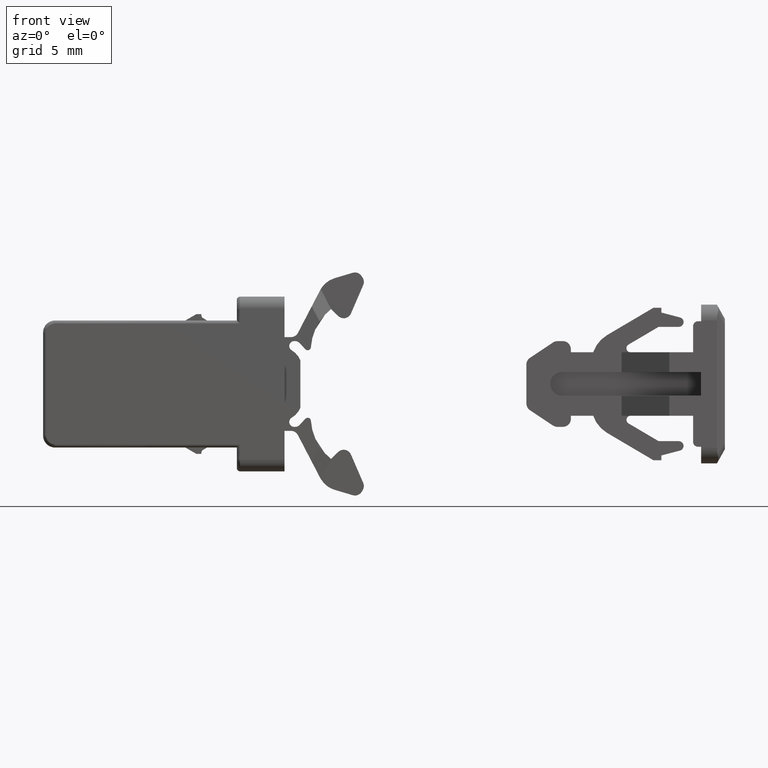
[diagram: clean part render]
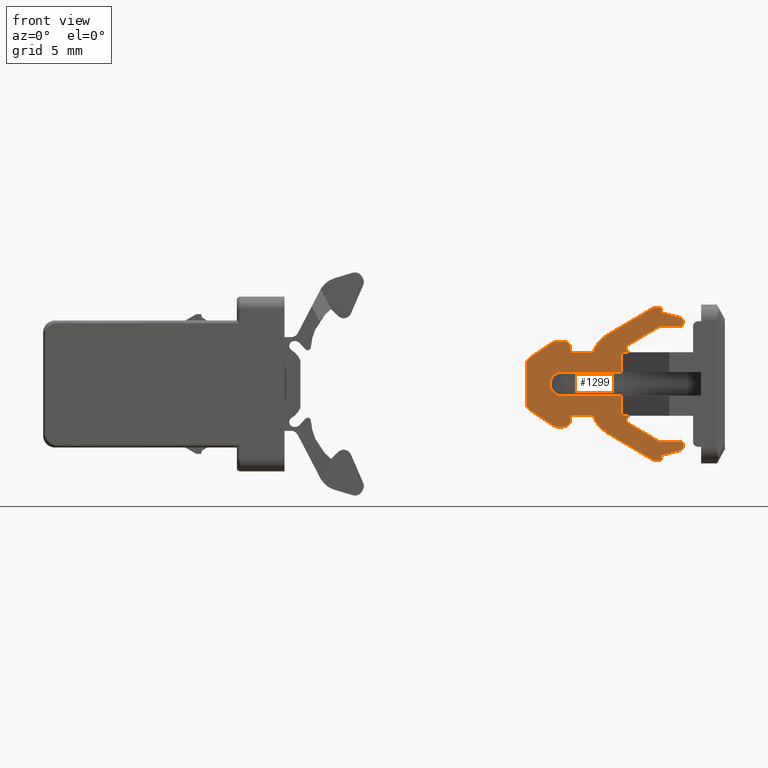
[diagram: same view with one face highlighted and labeled with its STEP entity id]
A machine part, front view. The second image highlights one B-rep face of the part: STEP entity #1299.
In plain terms, the highlighted face is a freeform B-spline surface patch.
Its self-contained STEP definition (entity closure, byte-faithful):
#812=CARTESIAN_POINT('',(21.233476587557750,-1.500000000000000,0.750000000000028));
#813=VERTEX_POINT('',#812);
#819=CARTESIAN_POINT('',(17.483476587557899,-1.499999999999946,0.750000000000000));
#820=VERTEX_POINT('',#819);
#821=CARTESIAN_POINT('',(21.233476587557750,-1.500000000000000,0.750000000000028));
#822=CARTESIAN_POINT('',(17.483476587557899,-1.499999999999946,0.750000000000000));
#823=QUASI_UNIFORM_CURVE('',1,(#821,#822),.UNSPECIFIED.,.F.,.U.);
#824=EDGE_CURVE('',#813,#820,#823,.T.);
#852=CARTESIAN_POINT('',(21.233476587557750,-1.500000000000000,-0.749999999999901));
#853=VERTEX_POINT('',#852);
#874=CARTESIAN_POINT('',(17.483476587557899,-1.499999999999946,-0.749999999999901));
#875=VERTEX_POINT('',#874);
#881=CARTESIAN_POINT('',(17.483476587557899,-1.499999999999946,-0.749999999999901));
#882=CARTESIAN_POINT('',(21.233476587557750,-1.500000000000000,-0.749999999999901));
#883=QUASI_UNIFORM_CURVE('',1,(#881,#882),.UNSPECIFIED.,.F.,.U.);
#884=EDGE_CURVE('',#875,#853,#883,.T.);
#910=CARTESIAN_POINT('',(17.483476587557899,-1.499999999999946,-0.749999999999901));
#911=CARTESIAN_POINT('',(16.733476587557899,-1.499999999999946,-0.750000000000000));
#912=CARTESIAN_POINT('',(16.733476587557899,-1.499999999999946,0.0));
#913=CARTESIAN_POINT('',(16.733476587557899,-1.499999999999946,0.750000000000000));
#914=CARTESIAN_POINT('',(17.483476587557899,-1.499999999999946,0.750000000000000));
#922=(BOUNDED_CURVE()B_SPLINE_CURVE(2,(#910,#911,#912,#913,#914),.UNSPECIFIED.,.F.,.U.)B_SPLINE_CURVE_WITH_KNOTS((3,2,3),(0.0,0.500000000000000,1.0),.UNSPECIFIED.)CURVE()GEOMETRIC_REPRESENTATION_ITEM()RATIONAL_B_SPLINE_CURVE((1.0,0.707106781186548,1.0,0.707106781186548,1.0))REPRESENTATION_ITEM(''));
#923=EDGE_CURVE('',#875,#820,#922,.T.);
#928=CARTESIAN_POINT('',(14.738979633618481,-1.500000000000000,-5.279520251747138));
#929=CARTESIAN_POINT('',(25.627813108885320,-1.500000000000000,-5.279520251747138));
#930=CARTESIAN_POINT('',(14.738979633618481,-1.500000000000000,5.279520251747236));
#931=CARTESIAN_POINT('',(25.627813108885320,-1.500000000000000,5.279520251747236));
#932=B_SPLINE_SURFACE_WITH_KNOTS('',1,1,((#928,#930),(#929,#931)),.UNSPECIFIED.,.F.,.F.,.U.,(2,2),(2,2),(0.0,10.888833475266850),(0.0,10.559040503494369),.UNSPECIFIED.);
#933=ORIENTED_EDGE('',*,*,#884,.F.);
#934=ORIENTED_EDGE('',*,*,#923,.T.);
#935=ORIENTED_EDGE('',*,*,#824,.F.);
#936=CARTESIAN_POINT('',(21.233476587557750,-1.500000000000000,1.999999999999890));
#937=VERTEX_POINT('',#936);
#938=CARTESIAN_POINT('',(21.233476587557750,-1.500000000000000,0.750000000000028));
#939=CARTESIAN_POINT('',(21.233476587557750,-1.500000000000000,1.999999999999890));
#940=QUASI_UNIFORM_CURVE('',1,(#938,#939),.UNSPECIFIED.,.F.,.U.);
#941=EDGE_CURVE('',#813,#937,#940,.T.);
#942=ORIENTED_EDGE('',*,*,#941,.T.);
#943=CARTESIAN_POINT('',(21.790795587557650,-1.499999999999946,2.0));
#944=VERTEX_POINT('',#943);
#945=CARTESIAN_POINT('',(21.790795587557650,-1.499999999999946,2.0));
#946=CARTESIAN_POINT('',(21.233476587557750,-1.500000000000000,1.999999999999890));
#947=QUASI_UNIFORM_CURVE('',1,(#945,#946),.UNSPECIFIED.,.F.,.U.);
#948=EDGE_CURVE('',#944,#937,#947,.T.);
#949=ORIENTED_EDGE('',*,*,#948,.F.);
#950=CARTESIAN_POINT('',(21.660081389823500,-1.499999999999946,2.478964812664635));
#951=VERTEX_POINT('',#950);
#952=CARTESIAN_POINT('',(21.660081389823500,-1.499999999999946,2.478964812664635));
#953=CARTESIAN_POINT('',(21.490819050458253,-1.499999999999947,2.379143432640551));
#954=CARTESIAN_POINT('',(21.542555032218662,-1.499999999999946,2.189571716320330));
#955=CARTESIAN_POINT('',(21.594291013979060,-1.499999999999947,2.000000000000110));
#956=CARTESIAN_POINT('',(21.790795587557650,-1.499999999999946,2.0));
#964=(BOUNDED_CURVE()B_SPLINE_CURVE(2,(#952,#953,#954,#955,#956),.UNSPECIFIED.,.F.,.U.)B_SPLINE_CURVE_WITH_KNOTS((3,2,3),(0.0,0.500000000000000,1.0),.UNSPECIFIED.)CURVE()GEOMETRIC_REPRESENTATION_ITEM()RATIONAL_B_SPLINE_CURVE((1.0,0.794758237156629,1.0,0.794758237156629,1.0))REPRESENTATION_ITEM(''));
#965=EDGE_CURVE('',#951,#944,#964,.T.);
#966=ORIENTED_EDGE('',*,*,#965,.F.);
#967=CARTESIAN_POINT('',(23.560968587557749,-1.499999999999946,3.600000000000110));
#968=VERTEX_POINT('',#967);
#969=CARTESIAN_POINT('',(21.660081389823500,-1.499999999999946,2.478964812664635));
#970=CARTESIAN_POINT('',(23.560968587557749,-1.499999999999946,3.600000000000110));
#971=QUASI_UNIFORM_CURVE('',1,(#969,#970),.UNSPECIFIED.,.F.,.U.);
#972=EDGE_CURVE('',#951,#968,#971,.T.);
#973=ORIENTED_EDGE('',*,*,#972,.T.);
#974=CARTESIAN_POINT('',(24.833476587557801,-1.499999999999946,3.600000000000110));
#975=VERTEX_POINT('',#974);
#976=CARTESIAN_POINT('',(23.560968587557749,-1.499999999999946,3.600000000000110));
#977=CARTESIAN_POINT('',(24.833476587557801,-1.499999999999946,3.600000000000110));
#978=QUASI_UNIFORM_CURVE('',1,(#976,#977),.UNSPECIFIED.,.F.,.U.);
#979=EDGE_CURVE('',#968,#975,#978,.T.);
#980=ORIENTED_EDGE('',*,*,#979,.T.);
#981=CARTESIAN_POINT('',(24.909896620579651,-1.499999999999946,4.190103392866995));
#982=VERTEX_POINT('',#981);
#983=CARTESIAN_POINT('',(24.833476587557801,-1.499999999999946,3.600000000000110));
#984=CARTESIAN_POINT('',(25.097130937737955,-1.499999999999946,3.600000000000001));
#985=CARTESIAN_POINT('',(25.130992148377821,-1.499999999999946,3.861470906188294));
#986=CARTESIAN_POINT('',(25.164853359017673,-1.499999999999946,4.122941812376588));
#987=CARTESIAN_POINT('',(24.909896620579651,-1.499999999999946,4.190103392866991));
#995=(BOUNDED_CURVE()B_SPLINE_CURVE(2,(#983,#984,#985,#986,#987),.UNSPECIFIED.,.F.,.U.)B_SPLINE_CURVE_WITH_KNOTS((3,2,3),(0.0,0.500000000000000,1.0),.UNSPECIFIED.)CURVE()GEOMETRIC_REPRESENTATION_ITEM()RATIONAL_B_SPLINE_CURVE((1.0,0.751142567261931,1.0,0.751142567261931,1.0))REPRESENTATION_ITEM(''));
#996=EDGE_CURVE('',#975,#982,#995,.T.);
#997=ORIENTED_EDGE('',*,*,#996,.T.);
#998=CARTESIAN_POINT('',(23.733476587557899,-1.499999999999946,4.500000000000000));
#999=VERTEX_POINT('',#998);
#1000=CARTESIAN_POINT('',(24.909896620579651,-1.499999999999946,4.190103392866995));
#1001=CARTESIAN_POINT('',(23.733476587557899,-1.499999999999946,4.500000000000000));
#1002=QUASI_UNIFORM_CURVE('',1,(#1000,#1001),.UNSPECIFIED.,.F.,.U.);
#1003=EDGE_CURVE('',#982,#999,#1002,.T.);
#1004=ORIENTED_EDGE('',*,*,#1003,.T.);
#1005=CARTESIAN_POINT('',(23.733476587557899,-1.499999999999946,4.800000000000099));
#1006=VERTEX_POINT('',#1005);
#1007=CARTESIAN_POINT('',(23.733476587557899,-1.499999999999946,4.500000000000000));
#1008=CARTESIAN_POINT('',(23.733476587557899,-1.499999999999946,4.800000000000099));
#1009=QUASI_UNIFORM_CURVE('',1,(#1007,#1008),.UNSPECIFIED.,.F.,.U.);
#1010=EDGE_CURVE('',#999,#1006,#1009,.T.);
#1011=ORIENTED_EDGE('',*,*,#1010,.T.);
#1012=CARTESIAN_POINT('',(23.233476587557899,-1.499999999999946,4.800000000000099));
#1013=VERTEX_POINT('',#1012);
#1014=CARTESIAN_POINT('',(23.733476587557899,-1.499999999999946,4.800000000000099));
#1015=CARTESIAN_POINT('',(23.233476587557899,-1.499999999999946,4.800000000000099));
#1016=QUASI_UNIFORM_CURVE('',1,(#1014,#1015),.UNSPECIFIED.,.F.,.U.);
#1017=EDGE_CURVE('',#1006,#1013,#1016,.T.);
#1018=ORIENTED_EDGE('',*,*,#1017,.T.);
#1019=CARTESIAN_POINT('',(20.317506587557698,-1.499999999999946,3.080326000000100));
#1020=VERTEX_POINT('',#1019);
#1021=CARTESIAN_POINT('',(23.233476587557899,-1.499999999999946,4.800000000000099));
#1022=CARTESIAN_POINT('',(20.317506587557698,-1.499999999999946,3.080326000000100));
#1023=QUASI_UNIFORM_CURVE('',1,(#1021,#1022),.UNSPECIFIED.,.F.,.U.);
#1024=EDGE_CURVE('',#1013,#1020,#1023,.T.);
#1025=ORIENTED_EDGE('',*,*,#1024,.T.);
#1026=CARTESIAN_POINT('',(19.439456003764651,-1.499999999999946,2.000000435341340));
#1027=VERTEX_POINT('',#1026);
#1028=CARTESIAN_POINT('',(20.317506587557698,-1.499999999999946,3.080326000000100));
#1029=CARTESIAN_POINT('',(19.677947508062559,-1.499999999999946,2.703150020011923));
#1030=CARTESIAN_POINT('',(19.439456003764679,-1.499999999999946,2.000000435341330));
#1038=(BOUNDED_CURVE()B_SPLINE_CURVE(2,(#1028,#1029,#1030),.UNSPECIFIED.,.F.,.U.)CURVE()GEOMETRIC_REPRESENTATION_ITEM()QUASI_UNIFORM_CURVE()RATIONAL_B_SPLINE_CURVE((1.0,0.937480799413398,1.0))REPRESENTATION_ITEM(''));
#1039=EDGE_CURVE('',#1020,#1027,#1038,.T.);
#1040=ORIENTED_EDGE('',*,*,#1039,.T.);
#1041=CARTESIAN_POINT('',(18.033476587557750,-1.499999999999946,2.0));
#1042=VERTEX_POINT('',#1041);
#1043=CARTESIAN_POINT('',(19.439456003764651,-1.499999999999946,2.000000435341340));
#1044=CARTESIAN_POINT('',(18.033476587557750,-1.499999999999946,2.0));
#1045=QUASI_UNIFORM_CURVE('',1,(#1043,#1044),.UNSPECIFIED.,.F.,.U.);
#1046=EDGE_CURVE('',#1027,#1042,#1045,.T.);
#1047=ORIENTED_EDGE('',*,*,#1046,.T.);
#1048=CARTESIAN_POINT('',(18.033476587557750,-1.499999999999946,2.200000000000105));
#1049=VERTEX_POINT('',#1048);
#1050=CARTESIAN_POINT('',(18.033476587557750,-1.499999999999946,2.0));
#1051=CARTESIAN_POINT('',(18.033476587557750,-1.499999999999946,2.200000000000105));
#1052=QUASI_UNIFORM_CURVE('',1,(#1050,#1051),.UNSPECIFIED.,.F.,.U.);
#1053=EDGE_CURVE('',#1042,#1049,#1052,.T.);
#1054=ORIENTED_EDGE('',*,*,#1053,.T.);
#1055=CARTESIAN_POINT('',(17.533476587557750,-1.499999999999946,2.700000000000105));
#1056=VERTEX_POINT('',#1055);
#1057=CARTESIAN_POINT('',(18.033476587557750,-1.499999999999946,2.200000000000105));
#1058=CARTESIAN_POINT('',(18.033476587557754,-1.499999999999946,2.700000000000105));
#1059=CARTESIAN_POINT('',(17.533476587557750,-1.499999999999946,2.700000000000105));
#1067=(BOUNDED_CURVE()B_SPLINE_CURVE(2,(#1057,#1058,#1059),.UNSPECIFIED.,.F.,.U.)CURVE()GEOMETRIC_REPRESENTATION_ITEM()QUASI_UNIFORM_CURVE()RATIONAL_B_SPLINE_CURVE((1.0,0.707106781186548,1.0))REPRESENTATION_ITEM(''));
#1068=EDGE_CURVE('',#1049,#1056,#1067,.T.);
#1069=ORIENTED_EDGE('',*,*,#1068,.T.);
#1070=CARTESIAN_POINT('',(17.184864587557900,-1.499999999999946,2.700000000000105));
#1071=VERTEX_POINT('',#1070);
#1072=CARTESIAN_POINT('',(17.533476587557750,-1.499999999999946,2.700000000000105));
#1073=CARTESIAN_POINT('',(17.184864587557900,-1.499999999999946,2.700000000000105));
#1074=QUASI_UNIFORM_CURVE('',1,(#1072,#1073),.UNSPECIFIED.,.F.,.U.);
#1075=EDGE_CURVE('',#1056,#1071,#1074,.T.);
#1076=ORIENTED_EDGE('',*,*,#1075,.T.);
#1077=CARTESIAN_POINT('',(16.907513374442601,-1.499999999999946,2.616025191256785));
#1078=VERTEX_POINT('',#1077);
#1079=CARTESIAN_POINT('',(17.184864587557900,-1.499999999999946,2.700000000000105));
#1080=CARTESIAN_POINT('',(17.033476167369123,-1.499999999999946,2.700000357618821));
#1081=CARTESIAN_POINT('',(16.907513374442608,-1.499999999999946,2.616025191256767));
#1089=(BOUNDED_CURVE()B_SPLINE_CURVE(2,(#1079,#1080,#1081),.UNSPECIFIED.,.F.,.U.)CURVE()GEOMETRIC_REPRESENTATION_ITEM()QUASI_UNIFORM_CURVE()RATIONAL_B_SPLINE_CURVE((1.0,0.957091707246610,1.0))REPRESENTATION_ITEM(''));
#1090=EDGE_CURVE('',#1071,#1078,#1089,.T.);
#1091=ORIENTED_EDGE('',*,*,#1090,.T.);
#1092=CARTESIAN_POINT('',(15.455776593757051,-1.499999999999946,1.648201004132835));
#1093=VERTEX_POINT('',#1092);
#1094=CARTESIAN_POINT('',(16.907513374442601,-1.499999999999946,2.616025191256785));
#1095=CARTESIAN_POINT('',(15.455776593757051,-1.499999999999946,1.648201004132835));
#1096=QUASI_UNIFORM_CURVE('',1,(#1094,#1095),.UNSPECIFIED.,.F.,.U.);
#1097=EDGE_CURVE('',#1078,#1093,#1096,.T.);
#1098=ORIENTED_EDGE('',*,*,#1097,.T.);
#1099=CARTESIAN_POINT('',(15.233476587557851,-1.499999999999946,1.232409000000104));
#1100=VERTEX_POINT('',#1099);
#1101=CARTESIAN_POINT('',(15.455776593757040,-1.499999999999946,1.648201004132843));
#1102=CARTESIAN_POINT('',(15.233251368979941,-1.499999999999947,1.499850910172588));
#1103=CARTESIAN_POINT('',(15.233476587557870,-1.499999999999946,1.232409000000104));
#1111=(BOUNDED_CURVE()B_SPLINE_CURVE(2,(#1101,#1102,#1103),.UNSPECIFIED.,.F.,.U.)CURVE()GEOMETRIC_REPRESENTATION_ITEM()QUASI_UNIFORM_CURVE()RATIONAL_B_SPLINE_CURVE((1.0,0.881475798759034,1.0))REPRESENTATION_ITEM(''));
#1112=EDGE_CURVE('',#1093,#1100,#1111,.T.);
#1113=ORIENTED_EDGE('',*,*,#1112,.T.);
#1114=CARTESIAN_POINT('',(15.233476587557851,-1.499999999999946,-1.232407999999906));
#1115=VERTEX_POINT('',#1114);
#1116=CARTESIAN_POINT('',(15.233476587557851,-1.499999999999946,1.232409000000104));
#1117=CARTESIAN_POINT('',(15.233476587557851,-1.499999999999946,-1.232407999999906));
#1118=QUASI_UNIFORM_CURVE('',1,(#1116,#1117),.UNSPECIFIED.,.F.,.U.);
#1119=EDGE_CURVE('',#1100,#1115,#1118,.T.);
#1120=ORIENTED_EDGE('',*,*,#1119,.T.);
#1121=CARTESIAN_POINT('',(15.455776587557800,-1.499999999999946,-1.648199999999900));
#1122=VERTEX_POINT('',#1121);
#1123=CARTESIAN_POINT('',(15.233476587557870,-1.499999999999946,-1.232407999999906));
#1124=CARTESIAN_POINT('',(15.233251368983932,-1.499999999999947,-1.499849905378005));
#1125=CARTESIAN_POINT('',(15.455776587557789,-1.499999999999946,-1.648199999999913));
#1133=(BOUNDED_CURVE()B_SPLINE_CURVE(2,(#1123,#1124,#1125),.UNSPECIFIED.,.F.,.U.)CURVE()GEOMETRIC_REPRESENTATION_ITEM()QUASI_UNIFORM_CURVE()RATIONAL_B_SPLINE_CURVE((1.0,0.881475802282900,1.0))REPRESENTATION_ITEM(''));
#1134=EDGE_CURVE('',#1115,#1122,#1133,.T.);
#1135=ORIENTED_EDGE('',*,*,#1134,.T.);
#1136=CARTESIAN_POINT('',(16.907514587557849,-1.499999999999946,-2.616024999999910));
#1137=VERTEX_POINT('',#1136);
#1138=CARTESIAN_POINT('',(15.455776587557800,-1.499999999999946,-1.648199999999900));
#1139=CARTESIAN_POINT('',(16.907514587557849,-1.499999999999946,-2.616024999999910));
#1140=QUASI_UNIFORM_CURVE('',1,(#1138,#1139),.UNSPECIFIED.,.F.,.U.);
#1141=EDGE_CURVE('',#1122,#1137,#1140,.T.);
#1142=ORIENTED_EDGE('',*,*,#1141,.T.);
#1143=CARTESIAN_POINT('',(17.184864906423950,-1.499999999999946,-2.699999999999905));
#1144=VERTEX_POINT('',#1143);
#1145=CARTESIAN_POINT('',(16.907514587557849,-1.499999999999946,-2.616024999999910));
#1146=CARTESIAN_POINT('',(17.033476942740613,-1.499999999999946,-2.699999999999905));
#1147=CARTESIAN_POINT('',(17.184864906423950,-1.499999999999946,-2.699999999999905));
#1155=(BOUNDED_CURVE()B_SPLINE_CURVE(2,(#1145,#1146,#1147),.UNSPECIFIED.,.F.,.U.)CURVE()GEOMETRIC_REPRESENTATION_ITEM()QUASI_UNIFORM_CURVE()RATIONAL_B_SPLINE_CURVE((1.0,0.957091949605625,1.0))REPRESENTATION_ITEM(''));
#1156=EDGE_CURVE('',#1137,#1144,#1155,.T.);
#1157=ORIENTED_EDGE('',*,*,#1156,.T.);
#1158=CARTESIAN_POINT('',(17.533476587557750,-1.499999999999946,-2.699999999999905));
#1159=VERTEX_POINT('',#1158);
#1160=CARTESIAN_POINT('',(17.184864906423950,-1.499999999999946,-2.699999999999905));
#1161=CARTESIAN_POINT('',(17.533476587557750,-1.499999999999946,-2.699999999999905));
#1162=QUASI_UNIFORM_CURVE('',1,(#1160,#1161),.UNSPECIFIED.,.F.,.U.);
#1163=EDGE_CURVE('',#1144,#1159,#1162,.T.);
#1164=ORIENTED_EDGE('',*,*,#1163,.T.);
#1165=CARTESIAN_POINT('',(18.033476587557750,-1.499999999999946,-2.199999999999905));
#1166=VERTEX_POINT('',#1165);
#1167=CARTESIAN_POINT('',(17.533476587557750,-1.499999999999946,-2.699999999999905));
#1168=CARTESIAN_POINT('',(18.033476587557754,-1.499999999999946,-2.699999999999905));
#1169=CARTESIAN_POINT('',(18.033476587557750,-1.499999999999946,-2.199999999999905));
#1177=(BOUNDED_CURVE()B_SPLINE_CURVE(2,(#1167,#1168,#1169),.UNSPECIFIED.,.F.,.U.)CURVE()GEOMETRIC_REPRESENTATION_ITEM()QUASI_UNIFORM_CURVE()RATIONAL_B_SPLINE_CURVE((1.0,0.707106781186548,1.0))REPRESENTATION_ITEM(''));
#1178=EDGE_CURVE('',#1159,#1166,#1177,.T.);
#1179=ORIENTED_EDGE('',*,*,#1178,.T.);
#1180=CARTESIAN_POINT('',(18.033476587557750,-1.499999999999946,-1.999999999999900));
#1181=VERTEX_POINT('',#1180);
#1182=CARTESIAN_POINT('',(18.033476587557750,-1.499999999999946,-2.199999999999905));
#1183=CARTESIAN_POINT('',(18.033476587557750,-1.499999999999946,-1.999999999999900));
#1184=QUASI_UNIFORM_CURVE('',1,(#1182,#1183),.UNSPECIFIED.,.F.,.U.);
#1185=EDGE_CURVE('',#1166,#1181,#1184,.T.);
#1186=ORIENTED_EDGE('',*,*,#1185,.T.);
#1187=CARTESIAN_POINT('',(19.439456587557899,-1.499999999999946,-1.999999999999900));
#1188=VERTEX_POINT('',#1187);
#1189=CARTESIAN_POINT('',(18.033476587557750,-1.499999999999946,-1.999999999999900));
#1190=CARTESIAN_POINT('',(19.439456587557899,-1.499999999999946,-1.999999999999900));
#1191=QUASI_UNIFORM_CURVE('',1,(#1189,#1190),.UNSPECIFIED.,.F.,.U.);
#1192=EDGE_CURVE('',#1181,#1188,#1191,.T.);
#1193=ORIENTED_EDGE('',*,*,#1192,.T.);
#1194=CARTESIAN_POINT('',(20.317506544660500,-1.499999999999946,-3.080324804993340));
#1195=VERTEX_POINT('',#1194);
#1196=CARTESIAN_POINT('',(19.439456587557899,-1.499999999999946,-1.999999999999900));
#1197=CARTESIAN_POINT('',(19.677947837142774,-1.499999999999946,-2.703149155464613));
#1198=CARTESIAN_POINT('',(20.317506544660500,-1.499999999999946,-3.080324804993344));
#1206=(BOUNDED_CURVE()B_SPLINE_CURVE(2,(#1196,#1197,#1198),.UNSPECIFIED.,.F.,.U.)CURVE()GEOMETRIC_REPRESENTATION_ITEM()QUASI_UNIFORM_CURVE()RATIONAL_B_SPLINE_CURVE((1.0,0.937480874090327,1.0))REPRESENTATION_ITEM(''));
#1207=EDGE_CURVE('',#1188,#1195,#1206,.T.);
#1208=ORIENTED_EDGE('',*,*,#1207,.T.);
#1209=CARTESIAN_POINT('',(23.233476587557899,-1.499999999999946,-4.800000000000000));
#1210=VERTEX_POINT('',#1209);
#1211=CARTESIAN_POINT('',(20.317506544660500,-1.499999999999946,-3.080324804993340));
#1212=CARTESIAN_POINT('',(23.233476587557899,-1.499999999999946,-4.800000000000000));
#1213=QUASI_UNIFORM_CURVE('',1,(#1211,#1212),.UNSPECIFIED.,.F.,.U.);
#1214=EDGE_CURVE('',#1195,#1210,#1213,.T.);
#1215=ORIENTED_EDGE('',*,*,#1214,.T.);
#1216=CARTESIAN_POINT('',(23.733476587557899,-1.499999999999946,-4.800000000000000));
#1217=VERTEX_POINT('',#1216);
#1218=CARTESIAN_POINT('',(23.233476587557899,-1.499999999999946,-4.800000000000000));
#1219=CARTESIAN_POINT('',(23.733476587557899,-1.499999999999946,-4.800000000000000));
#1220=QUASI_UNIFORM_CURVE('',1,(#1218,#1219),.UNSPECIFIED.,.F.,.U.);
#1221=EDGE_CURVE('',#1210,#1217,#1220,.T.);
#1222=ORIENTED_EDGE('',*,*,#1221,.T.);
#1223=CARTESIAN_POINT('',(23.733476587557899,-1.499999999999946,-4.499999999999900));
#1224=VERTEX_POINT('',#1223);
#1225=CARTESIAN_POINT('',(23.733476587557899,-1.499999999999946,-4.800000000000000));
#1226=CARTESIAN_POINT('',(23.733476587557899,-1.499999999999946,-4.499999999999900));
#1227=QUASI_UNIFORM_CURVE('',1,(#1225,#1226),.UNSPECIFIED.,.F.,.U.);
#1228=EDGE_CURVE('',#1217,#1224,#1227,.T.);
#1229=ORIENTED_EDGE('',*,*,#1228,.T.);
#1230=CARTESIAN_POINT('',(24.909896587557899,-1.499999999999946,-4.190102999999909));
#1231=VERTEX_POINT('',#1230);
#1232=CARTESIAN_POINT('',(23.733476587557899,-1.499999999999946,-4.499999999999900));
#1233=CARTESIAN_POINT('',(24.909896587557899,-1.499999999999946,-4.190102999999909));
#1234=QUASI_UNIFORM_CURVE('',1,(#1232,#1233),.UNSPECIFIED.,.F.,.U.);
#1235=EDGE_CURVE('',#1224,#1231,#1234,.T.);
#1236=ORIENTED_EDGE('',*,*,#1235,.T.);
#1237=CARTESIAN_POINT('',(24.833476587557801,-1.499999999999946,-3.599999999999905));
#1238=VERTEX_POINT('',#1237);
#1239=CARTESIAN_POINT('',(24.909896587557899,-1.499999999999946,-4.190102999999909));
#1240=CARTESIAN_POINT('',(25.164853380460084,-1.499999999999947,-4.122941744796780));
#1241=CARTESIAN_POINT('',(25.130992144001929,-1.499999999999946,-3.861470872398343));
#1242=CARTESIAN_POINT('',(25.097130907543796,-1.499999999999947,-3.599999999999906));
#1243=CARTESIAN_POINT('',(24.833476587557801,-1.499999999999946,-3.599999999999905));
#1251=(BOUNDED_CURVE()B_SPLINE_CURVE(2,(#1239,#1240,#1241,#1242,#1243),.UNSPECIFIED.,.F.,.U.)B_SPLINE_CURVE_WITH_KNOTS((3,2,3),(0.0,0.500000000000000,1.0),.UNSPECIFIED.)CURVE()GEOMETRIC_REPRESENTATION_ITEM()RATIONAL_B_SPLINE_CURVE((1.0,0.751142604749106,1.0,0.751142604749106,1.0))REPRESENTATION_ITEM(''));
#1252=EDGE_CURVE('',#1231,#1238,#1251,.T.);
#1253=ORIENTED_EDGE('',*,*,#1252,.T.);
#1254=CARTESIAN_POINT('',(23.560968587557749,-1.499999999999946,-3.599999999999895));
#1255=VERTEX_POINT('',#1254);
#1256=CARTESIAN_POINT('',(24.833476587557801,-1.499999999999946,-3.599999999999905));
#1257=CARTESIAN_POINT('',(23.560968587557749,-1.499999999999946,-3.599999999999895));
#1258=QUASI_UNIFORM_CURVE('',1,(#1256,#1257),.UNSPECIFIED.,.F.,.U.);
#1259=EDGE_CURVE('',#1238,#1255,#1258,.T.);
#1260=ORIENTED_EDGE('',*,*,#1259,.T.);
#1261=CARTESIAN_POINT('',(21.660081587557851,-1.499999999999946,-2.478963000000105));
#1262=VERTEX_POINT('',#1261);
#1263=CARTESIAN_POINT('',(23.560968587557749,-1.499999999999946,-3.599999999999895));
#1264=CARTESIAN_POINT('',(21.660081587557851,-1.499999999999946,-2.478963000000105));
#1265=QUASI_UNIFORM_CURVE('',1,(#1263,#1264),.UNSPECIFIED.,.F.,.U.);
#1266=EDGE_CURVE('',#1255,#1262,#1265,.T.);
#1267=ORIENTED_EDGE('',*,*,#1266,.T.);
#1268=CARTESIAN_POINT('',(21.790795587557650,-1.500000000000000,-1.999999999999900));
#1269=VERTEX_POINT('',#1268);
#1270=CARTESIAN_POINT('',(21.790795587557650,-1.500000000000000,-1.999999999999900));
#1271=CARTESIAN_POINT('',(21.594291109959435,-1.499999999999947,-1.999999000000000));
#1272=CARTESIAN_POINT('',(21.542555064141609,-1.499999999999946,-2.189570599347805));
#1273=CARTESIAN_POINT('',(21.490819018323776,-1.499999999999947,-2.379142198695610));
#1274=CARTESIAN_POINT('',(21.660081587557851,-1.499999999999946,-2.478963000000105));
#1282=(BOUNDED_CURVE()B_SPLINE_CURVE(2,(#1270,#1271,#1272,#1273,#1274),.UNSPECIFIED.,.F.,.U.)B_SPLINE_CURVE_WITH_KNOTS((3,2,3),(0.0,0.500000000000000,1.0),.UNSPECIFIED.)CURVE()GEOMETRIC_REPRESENTATION_ITEM()RATIONAL_B_SPLINE_CURVE((1.0,0.794758380150208,1.0,0.794758380150208,1.0))REPRESENTATION_ITEM(''));
#1283=EDGE_CURVE('',#1269,#1262,#1282,.T.);
#1284=ORIENTED_EDGE('',*,*,#1283,.F.);
#1285=CARTESIAN_POINT('',(21.233476587557750,-1.500000000000000,-1.999999999999890));
#1286=VERTEX_POINT('',#1285);
#1287=CARTESIAN_POINT('',(21.790795587557650,-1.500000000000000,-1.999999999999900));
#1288=CARTESIAN_POINT('',(21.233476587557750,-1.500000000000000,-1.999999999999890));
#1289=QUASI_UNIFORM_CURVE('',1,(#1287,#1288),.UNSPECIFIED.,.F.,.U.);
#1290=EDGE_CURVE('',#1269,#1286,#1289,.T.);
#1291=ORIENTED_EDGE('',*,*,#1290,.T.);
#1292=CARTESIAN_POINT('',(21.233476587557750,-1.500000000000000,-1.999999999999890));
#1293=CARTESIAN_POINT('',(21.233476587557750,-1.500000000000000,-0.749999999999901));
#1294=QUASI_UNIFORM_CURVE('',1,(#1292,#1293),.UNSPECIFIED.,.F.,.U.);
#1295=EDGE_CURVE('',#1286,#853,#1294,.T.);
#1296=ORIENTED_EDGE('',*,*,#1295,.T.);
#1297=EDGE_LOOP('',(#933,#934,#935,#942,#949,#966,#973,#980,#997,#1004,#1011,#1018,#1025,#1040,#1047,#1054,#1069,#1076,#1091,#1098,#1113,#1120,#1135,#1142,#1157,#1164,#1179,#1186,#1193,#1208,#1215,#1222,#1229,#1236,#1253,#1260,#1267,#1284,#1291,#1296));
#1298=FACE_OUTER_BOUND('',#1297,.T.);
#1299=ADVANCED_FACE('',(#1298),#932,.T.);